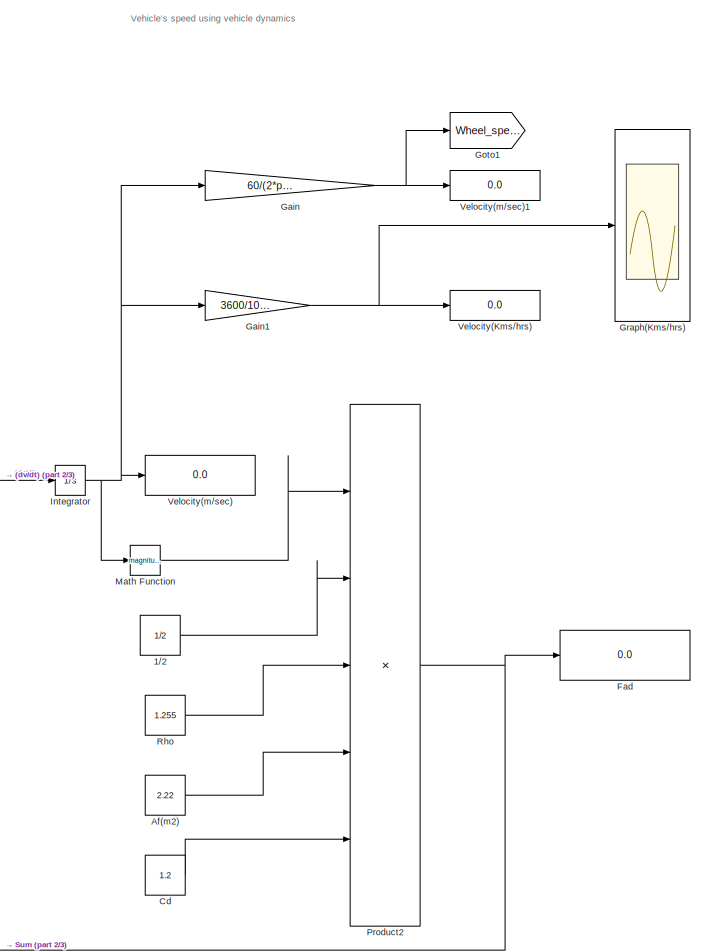
[diagram: root canvas - part 1/3, right side, full height]
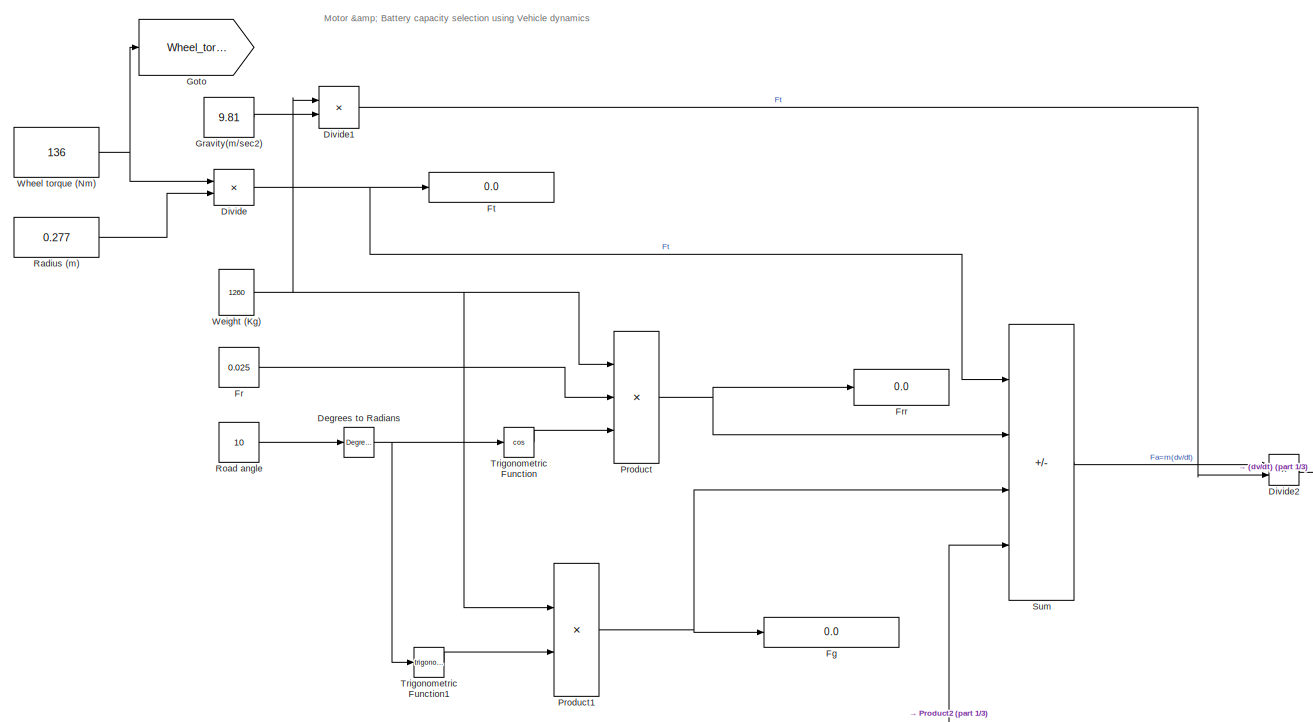
[diagram: root canvas - part 2/3, central region]
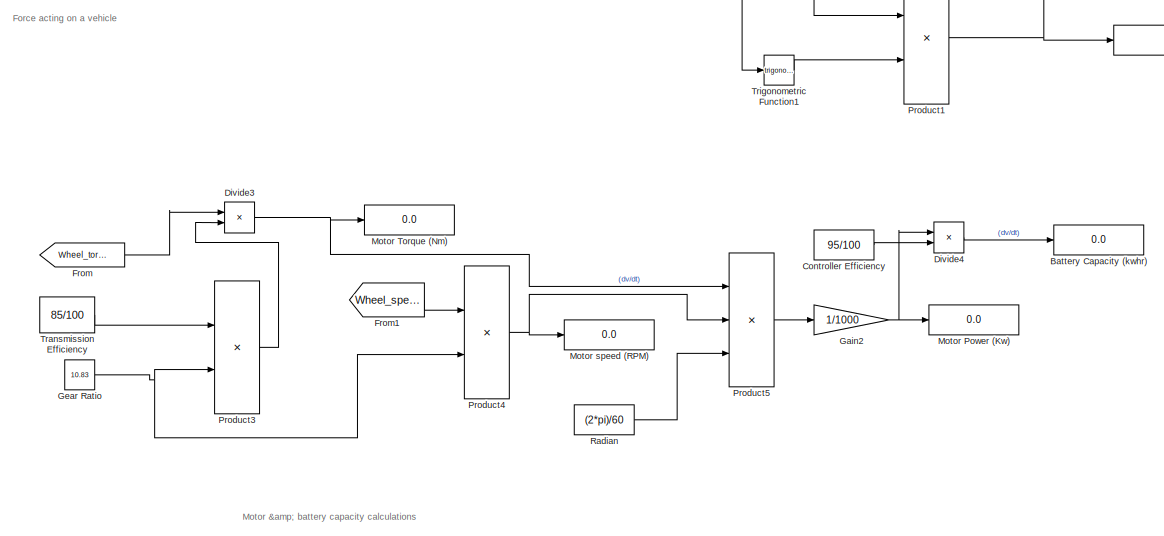
[diagram: root canvas - part 3/3, bottom left region]
MODEL slx_5f85085a384d
KIND model
CONFIG AbsTol = auto
CONFIG EnableMultiTasking = off
CONFIG FixedStep = auto
CONFIG MaxStep = auto
CONFIG MinStep = auto
CONFIG RelTol = 1e-3
CONFIG SampleTimeConstraint = Unconstrained
CONFIG SolverName = VariableStepAuto
CONFIG StartTime = 0.0
CONFIG StopTime =  100
BLOCK [Constant]        Af(m2)
  Value = 2.22
BLOCK [Constant]        Cd
  Value = 1.2
BLOCK [Constant]       1//2
  Value = 1/2
BLOCK [Constant]       Rho
  Value = 1.255
BLOCK [Constant]       Road angle
  Value = 10
BLOCK [Constant]      Fr
  Value = 0.025
BLOCK [Display]    Battery Capacity (kwhr)
  Decimation = 1
BLOCK [Display]    Fad
  Decimation = 1
BLOCK [Display]    Motor Torque (Nm)
  Decimation = 1
BLOCK [Display]    Motor speed (RPM)
  Decimation = 1
BLOCK [Constant]    Weight (Kg)
  Value = 1260
BLOCK [Display]   Fg
  Decimation = 1
BLOCK [Display]   Motor Power (Kw)
  Decimation = 1
BLOCK [Constant]  Controller Efficiency
  Value = 95/100
BLOCK [Display]  Frr
  Decimation = 1
BLOCK [Constant]  Gravity(m//sec2)
  Value = 9.81
BLOCK [Constant]  Radius (m)
  Value = 0.277
BLOCK [Display]  Velocity(Kms//hrs)
  Decimation = 1
BLOCK [Display]  Velocity(m//sec)
  Decimation = 1
BLOCK [Display]  Velocity(m//sec)1
  Decimation = 1
BLOCK [Reference] Degrees to Radians  REF=simulink_extras/Transformations/Degrees to
Radians
  SourceBlock = simulink_extras/Transformations/Degrees to\nRadians
  SourceType = DegreesToRadians
BLOCK [Product] Divide
  Inputs = */
BLOCK [Product] Divide1
  Inputs = */
BLOCK [Product] Divide2
  Inputs = */
BLOCK [Product] Divide3
  Inputs = */
BLOCK [Product] Divide4
  Inputs = */
BLOCK [From] From
  GotoTag = Wheel_torque
BLOCK [From] From1
  GotoTag = Wheel_speed
BLOCK [Display] Ft
  Decimation = 1
BLOCK [Gain] Gain
  Gain = 60/(2*pi*0.277)
BLOCK [Gain] Gain1
  Gain = 3600/1000
BLOCK [Gain] Gain2
  Gain = 1/1000
BLOCK [Constant] Gear Ratio
  Value = 10.83
BLOCK [Goto] Goto
  GotoTag = Wheel_torque
BLOCK [Goto] Goto1
  GotoTag = Wheel_speed
BLOCK [Scope] Graph(Kms//hrs)
  Floating = off
  NumInputPorts = 1
  ScopeSpecificationString = Simulink.scopes.TimeScopeBlockCfg('CurrentConfiguration', extmgr.ConfigurationSet(extmgr.Configuration('Core','General UI',true),extmgr.Configuration('Core','Source UI',true),extmgr.Configuration('Sources','WiredSimulink',true),extmgr.Configuration('Visuals','Time Domain',true,'SerializedDisplays',{struct('MinYLimReal','-5.40491','MaxYLimReal','48.64415','YLabelReal','','MinYLimMag','0.00000','Max...<+1457ch>
BLOCK [Integrator] Integrator
BLOCK [Math] Math Function
  Operator = magnitude^2
BLOCK [Product] Product
  Inputs = 3
BLOCK [Product] Product1
BLOCK [Product] Product2
  Inputs = 5
BLOCK [Product] Product3
BLOCK [Product] Product4
BLOCK [Product] Product5
  Inputs = 3
BLOCK [Constant] Radian
  Value = (2*pi)/60
BLOCK [Sum] Sum
  IconShape = rectangular
  Inputs = +---
BLOCK [Constant] Transmission Efficiency
  Value = 85/100
BLOCK [Trigonometry] Trigonometric Function
  Operator = cos
BLOCK [Trigonometry] Trigonometric Function1
BLOCK [Constant] Wheel torque (Nm)
  Value = 136
ANNOTATION (root): Motor & battery capacity calculations
ANNOTATION (root): Motor & Battery capacity selection using Vehicle dynamics
ANNOTATION (root): Vehicle's speed using vehicle dynamics
ANNOTATION (root): Force acting on a vehicle
LINE        Af(m2):1 -> Product2:4
LINE        Cd:1 -> Product2:5
LINE       1//2:1 -> Product2:2
LINE       Rho:1 -> Product2:3
LINE       Road angle:1 -> Degrees to Radians:1
LINE      Fr:1 -> Product:2
NET    Weight (Kg):1 -> Divide1:1, Product1:1, Product:1
LINE  Controller Efficiency:1 -> Divide4:2
LINE  Gravity(m//sec2):1 -> Divide1:2
LINE  Radius (m):1 -> Divide:2
NET Degrees to Radians:1 -> Trigonometric Function1:1, Trigonometric Function:1
LINE Divide1:1 -> Divide2:2
LINE Divide2:1 -> Integrator:1
NET Divide3:1 ->    Motor Torque (Nm):1, Product5:1
LINE Divide4:1 ->    Battery Capacity (kwhr):1
NET Divide:1 -> Ft:1, Sum:1
LINE From1:1 -> Product4:1
LINE From:1 -> Divide3:1
NET Gain1:1 ->  Velocity(Kms//hrs):1, Graph(Kms//hrs):1
NET Gain2:1 ->   Motor Power (Kw):1, Divide4:1
NET Gain:1 ->  Velocity(m//sec)1:1, Goto1:1
NET Gear Ratio:1 -> Product3:2, Product4:2
NET Integrator:1 ->  Velocity(m//sec):1, Gain1:1, Gain:1, Math Function:1
LINE Math Function:1 -> Product2:1
NET Product1:1 ->   Fg:1, Sum:3
NET Product2:1 ->    Fad:1, Sum:4
LINE Product3:1 -> Divide3:2
NET Product4:1 ->    Motor speed (RPM):1, Product5:2
LINE Product5:1 -> Gain2:1
NET Product:1 ->  Frr:1, Sum:2
LINE Radian:1 -> Product5:3
LINE Sum:1 -> Divide2:1
LINE Transmission Efficiency:1 -> Product3:1
LINE Trigonometric Function1:1 -> Product1:2
LINE Trigonometric Function:1 -> Product:3
NET Wheel torque (Nm):1 -> Divide:1, Goto:1
note: NET lines group one-source signal fan-out (src -> all destinations, sorted); 1:1 wires keep LINE
